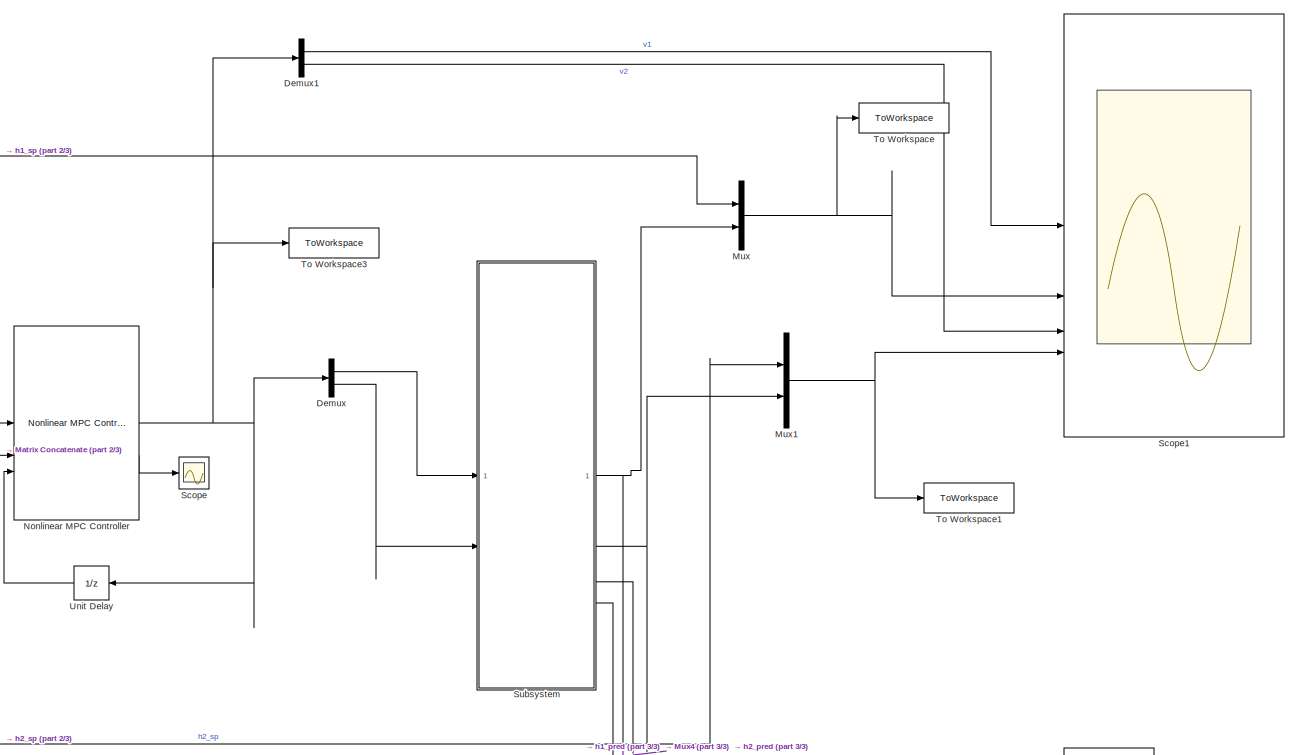
[diagram: root canvas - part 1/3, top center region]
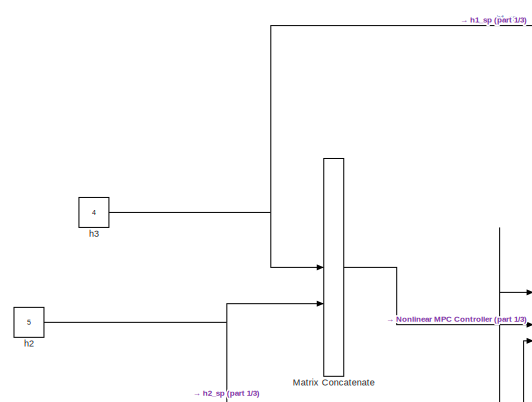
[diagram: root canvas - part 2/3, top left region]
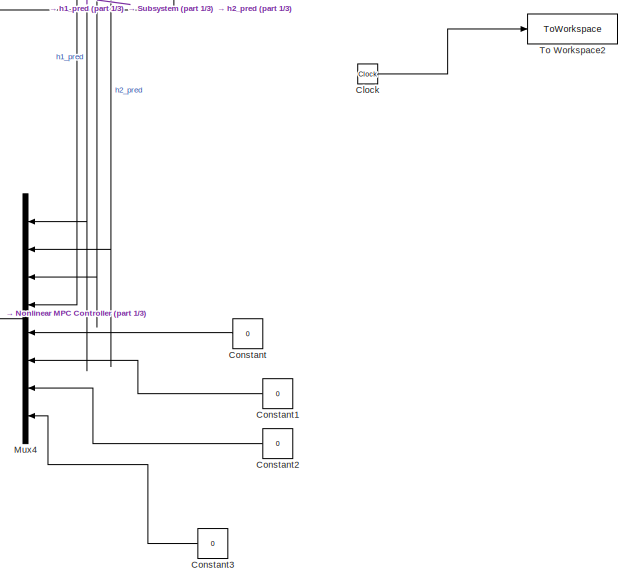
[diagram: root canvas - part 3/3, bottom right region]
MODEL slx_9bbb428cd1ed
KIND model
CONFIG AbsTol = auto
CONFIG EnableMultiTasking = off
CONFIG FixedStep = auto
CONFIG MaxStep = auto
CONFIG MinStep = auto
CONFIG RelTol = 1e-3
CONFIG SampleTimeConstraint = Unconstrained
CONFIG SolverName = VariableStepAuto
CONFIG StartTime = 0.0
CONFIG StopTime = 1200
BLOCK [Clock] Clock
BLOCK [Constant] Constant
  Value = 0
BLOCK [Constant] Constant1
  Value = 0
BLOCK [Constant] Constant2
  Value = 0
BLOCK [Constant] Constant3
  Value = 0
BLOCK [Demux] Demux
  Outputs = 2
BLOCK [Demux] Demux1
  Outputs = 2
BLOCK [Concatenate] Matrix Concatenate
  ConcatenateDimension = 2
  Mode = Multidimensional array
BLOCK [Mux] Mux
  DisplayOption = bar
  Inputs = 2
BLOCK [Mux] Mux1
  DisplayOption = bar
  Inputs = 2
BLOCK [Mux] Mux4
  DisplayOption = bar
  Inputs = 8
BLOCK [Reference] Nonlinear MPC Controller  REF=mpclib/Nonlinear MPC Controller  (lib defined in mdl_ae329e0e0455)
  SourceBlock = mpclib/Nonlinear MPC Controller
  SourceType = NonlinearMPC
BLOCK [Scope] Scope
  Floating = off
  NumInputPorts = 1
  ScopeSpecificationString = Simulink.scopes.TimeScopeBlockCfg('CurrentConfiguration', extmgr.ConfigurationSet(extmgr.Configuration('Core','General UI',true),extmgr.Configuration('Core','Source UI',true),extmgr.Configuration('Sources','WiredSimulink',true,'DataLoggingVariableName','ScopeData1'),extmgr.Configuration('Visuals','Time Domain',true),extmgr.Configuration('Tools','Plot Navigation',true),extmgr.Configuration('Tools',...<+40ch>
BLOCK [Scope] Scope1
  Floating = off
  NumInputPorts = 4
  ScopeSpecificationString = Simulink.scopes.TimeScopeBlockCfg('CurrentConfiguration', extmgr.ConfigurationSet(extmgr.Configuration('Core','General UI',true),extmgr.Configuration('Core','Source UI',true),extmgr.Configuration('Sources','WiredSimulink',true),extmgr.Configuration('Visuals','Time Domain',true,'SerializedDisplays',{struct('MinYLimReal','50.91543','MaxYLimReal','88.78717','YLabelReal','','MinYLimMag','50.91543','Ma...<+3421ch>
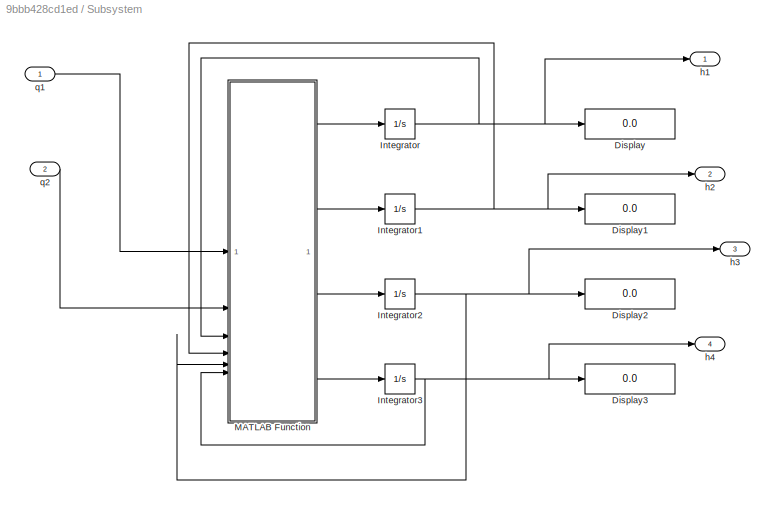
BLOCK [SubSystem] Subsystem
BLOCK [Display] Subsystem/Display
  Decimation = 1
BLOCK [Display] Subsystem/Display1
  Decimation = 1
BLOCK [Display] Subsystem/Display2
  Decimation = 1
BLOCK [Display] Subsystem/Display3
  Decimation = 1
BLOCK [Integrator] Subsystem/Integrator
BLOCK [Integrator] Subsystem/Integrator1
BLOCK [Integrator] Subsystem/Integrator2
BLOCK [Integrator] Subsystem/Integrator3
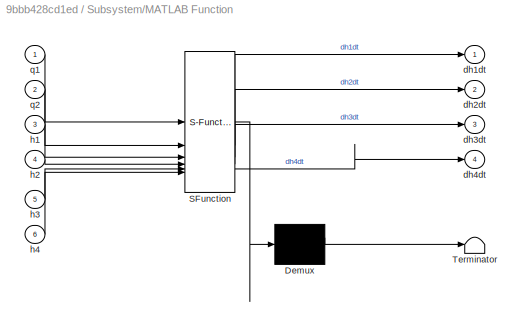
BLOCK [SubSystem] Subsystem/MATLAB Function
  ErrorFcn = Stateflow.Translate.translate
  PermitHierarchicalResolution = ExplicitOnly
  SFBlockType = MATLAB Function
  TreatAsAtomicUnit = on
BLOCK [Demux] Subsystem/MATLAB Function/ Demux 
  Outputs = 1
BLOCK [S-Function] Subsystem/MATLAB Function/ SFunction 
  EnableBusSupport = on
  FunctionName = sf_sfun
  PortCounts = [6 5]
  SFcnIsStateOwnerBlock = off
  SFunctionDeploymentMode = off
  Tag = Stateflow S-Function 2
BLOCK [Terminator] Subsystem/MATLAB Function/ Terminator 
BLOCK [Outport] Subsystem/MATLAB Function/dh1dt
BLOCK [Outport] Subsystem/MATLAB Function/dh2dt
  Port = 2
BLOCK [Outport] Subsystem/MATLAB Function/dh3dt
  Port = 3
BLOCK [Outport] Subsystem/MATLAB Function/dh4dt
  Port = 4
BLOCK [Inport] Subsystem/MATLAB Function/h1
  Port = 3
BLOCK [Inport] Subsystem/MATLAB Function/h2
  Port = 4
BLOCK [Inport] Subsystem/MATLAB Function/h3
  Port = 5
BLOCK [Inport] Subsystem/MATLAB Function/h4
  Port = 6
BLOCK [Inport] Subsystem/MATLAB Function/q1
BLOCK [Inport] Subsystem/MATLAB Function/q2
  Port = 2
BLOCK [Outport] Subsystem/h1
BLOCK [Outport] Subsystem/h2
  Port = 2
BLOCK [Outport] Subsystem/h3
  Port = 3
BLOCK [Outport] Subsystem/h4
  Port = 4
BLOCK [Inport] Subsystem/q1
BLOCK [Inport] Subsystem/q2
  Port = 2
BLOCK [ToWorkspace] To Workspace
  FixptAsFi = on
  MaxDataPoints = inf
  SampleTime = Ts
  SaveFormat = Timeseries
  VariableName = H1_nom
BLOCK [ToWorkspace] To Workspace1
  FixptAsFi = on
  MaxDataPoints = inf
  SampleTime = Ts
  SaveFormat = Timeseries
  VariableName = H2_nom
BLOCK [ToWorkspace] To Workspace2
  FixptAsFi = on
  MaxDataPoints = inf
  SampleTime = Ts
  SaveFormat = Timeseries
  VariableName = t_save
BLOCK [ToWorkspace] To Workspace3
  FixptAsFi = on
  MaxDataPoints = inf
  SampleTime = Ts
  SaveFormat = Timeseries
  VariableName = V_nom
BLOCK [UnitDelay] Unit Delay
  HasFrameUpgradeWarning = on
  InitialCondition = u0
  SampleTime = -1
BLOCK [Constant] h2
  Value = 5
BLOCK [Constant] h3
  Value = 4
LINE Clock:1 -> To Workspace2:1
LINE Constant1:1 -> Mux4:6
LINE Constant2:1 -> Mux4:7
LINE Constant3:1 -> Mux4:8
LINE Constant:1 -> Mux4:5
LINE Demux1:1 -> Scope1:1
LINE Demux1:2 -> Scope1:3
LINE Demux:1 -> Subsystem:1
LINE Demux:2 -> Subsystem:2
LINE Matrix Concatenate:1 -> Nonlinear MPC Controller:2
NET Mux1:1 -> Scope1:4, To Workspace1:1
LINE Mux4:1 -> Nonlinear MPC Controller:1
NET Mux:1 -> Scope1:2, To Workspace:1
NET Nonlinear MPC Controller:1 -> Demux1:1, Demux:1, To Workspace3:1, Unit Delay:1
LINE Nonlinear MPC Controller:2 -> Scope:1
NET Subsystem/Integrator1:1 -> Subsystem/Display1:1, Subsystem/MATLAB Function:4, Subsystem/h2:1
NET Subsystem/Integrator2:1 -> Subsystem/Display2:1, Subsystem/MATLAB Function:5, Subsystem/h3:1
NET Subsystem/Integrator3:1 -> Subsystem/Display3:1, Subsystem/MATLAB Function:6, Subsystem/h4:1
NET Subsystem/Integrator:1 -> Subsystem/Display:1, Subsystem/MATLAB Function:3, Subsystem/h1:1
LINE Subsystem/MATLAB Function:1 -> Subsystem/Integrator:1
LINE Subsystem/MATLAB Function:2 -> Subsystem/Integrator1:1
LINE Subsystem/MATLAB Function:3 -> Subsystem/Integrator2:1
LINE Subsystem/MATLAB Function:4 -> Subsystem/Integrator3:1
LINE Subsystem/q1:1 -> Subsystem/MATLAB Function:1
LINE Subsystem/q2:1 -> Subsystem/MATLAB Function:2
NET Subsystem:1 -> Mux4:1, Mux:2
NET Subsystem:2 -> Mux1:2, Mux4:2
LINE Subsystem:3 -> Mux4:3
LINE Subsystem:4 -> Mux4:4
LINE Unit Delay:1 -> Nonlinear MPC Controller:3
NET h2:1 -> Matrix Concatenate:2, Mux1:1
NET h3:1 -> Matrix Concatenate:1, Mux:1
note: NET lines group one-source signal fan-out (src -> all destinations, sorted); 1:1 wires keep LINE
CHART Subsystem/MATLAB Function states=1 transitions=1
  STATE_LABEL 'eML_blk_kernel()'
  STATE_LABEL 'SCRIPT:\nfunction [dh1dt,dh2dt,dh3dt,dh4dt] = fcn(q1,q2,h1,h2,h3,h4)\nvalues = {0.97,0.42,0.74,0.426,0.8542,0.7126,0.7722,0.5149,35,35,39,39,981,0.23,0.19};\n[a1,a3,a2,a4,alpha1,alpha3,alpha2,alpha4,A1,A3,A2,A4,g,gamma1,gamma2] = values{:};\n\n%F = k1 * v1;\n%F2 = k2 * v2;\n\n    dh1dt = -(a1*alpha1/A1) * sqrt(2 * g * h1) + (a3*alpha3/A1) * sqrt(2 * g * h3) + (gamma1 * q1) / A1;\n    dh2dt = -(a2*alpha2/A2...<+235ch>'
CHART  states=0 transitions=0
